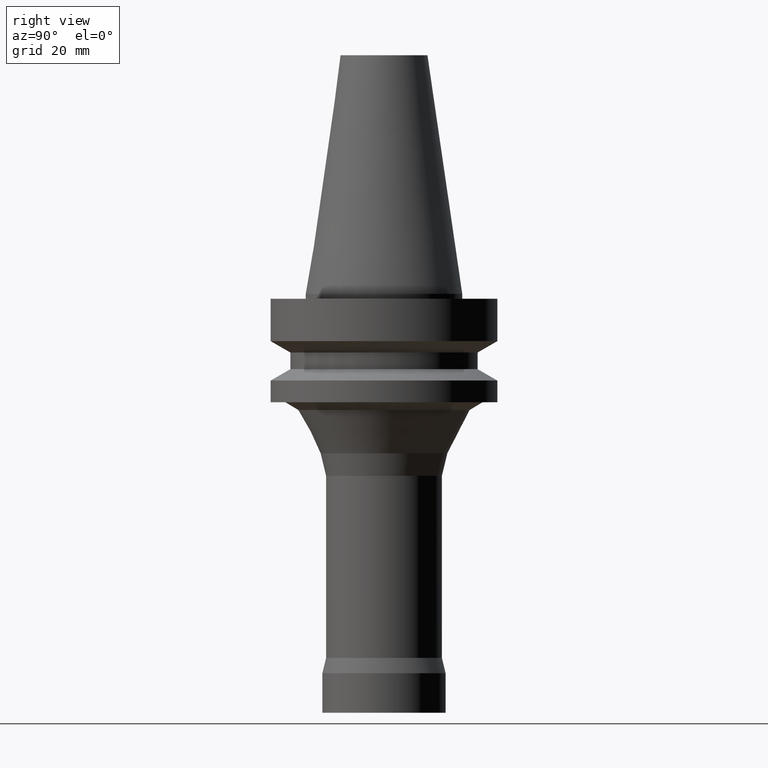
[diagram: clean part render]
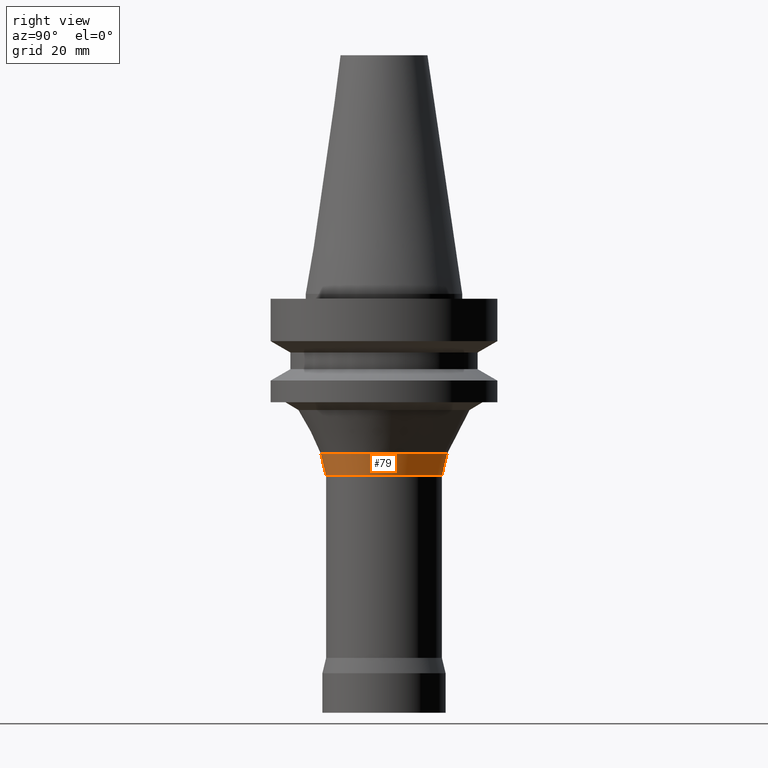
[diagram: same view with one face highlighted and labeled with its STEP entity id]
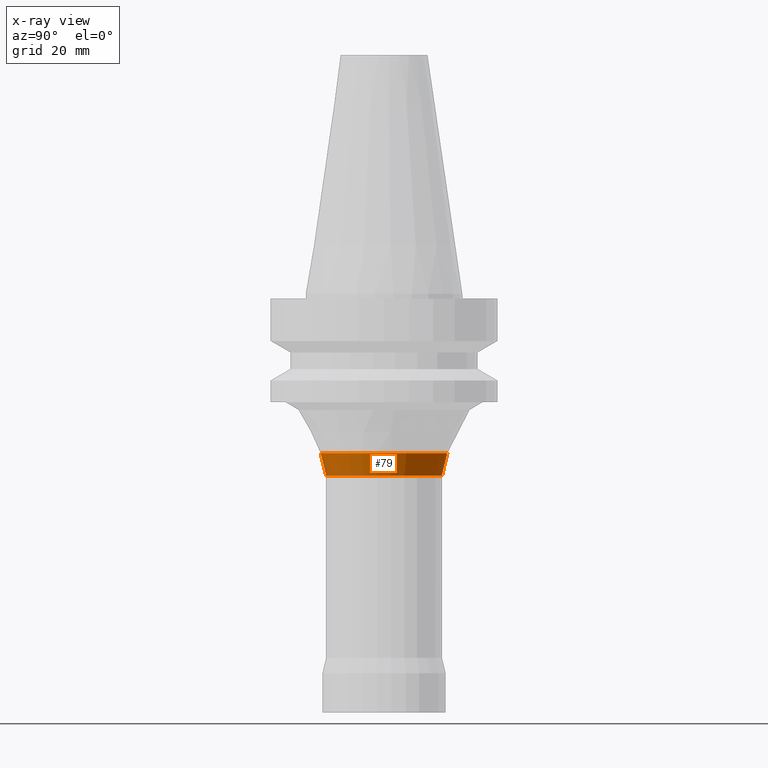
[diagram: x-ray of the same camera — body ghosted, the highlighted face saturated]
A machine part, right view. The second image highlights one B-rep face of the part: STEP entity #79.
The next image is the same camera in x-ray: the body ghosted, the highlighted face saturated — about 0% of this face is hidden behind the body in this view.
In plain terms, the highlighted conical surface has half-angle 13.59 deg.
Its self-contained STEP definition (entity closure, byte-faithful):
#79=ADVANCED_FACE('',(#104,#105),#106,.T.);
#104=FACE_BOUND('',#153,.T.);
#105=FACE_BOUND('',#154,.T.);
#106=CONICAL_SURFACE('',#155,12.30212292,0.237190749227247);
#153=EDGE_LOOP('',(#210));
#154=EDGE_LOOP('',(#211));
#155=AXIS2_PLACEMENT_3D('',#212,#213,#214);
#210=ORIENTED_EDGE('',*,*,#275,.F.);
#211=ORIENTED_EDGE('',*,*,#278,.T.);
#212=CARTESIAN_POINT('',(2.12068846313392E-015,4.24137692626783E-015,-34.633470885));
#213=DIRECTION('',(-6.12323399573677E-017,-1.22464679914735E-016,1.0));
#214=DIRECTION('',(-1.23259516440783E-032,1.0,1.22464679914735E-016));
#275=EDGE_CURVE('',#292,#292,#293,.T.);
#278=EDGE_CURVE('',#298,#298,#299,.T.);
#292=VERTEX_POINT('',#324);
#293=CIRCLE('',#325,11.75);
#298=VERTEX_POINT('',#330);
#299=CIRCLE('',#331,12.85424584);
#324=CARTESIAN_POINT('',(2.26053955499567E-015,11.75,-36.91741254));
#325=AXIS2_PLACEMENT_3D('',#357,#358,#359);
#330=CARTESIAN_POINT('',(1.98083737127216E-015,12.85424584,-32.34952923));
#331=AXIS2_PLACEMENT_3D('',#366,#367,#368);
#357=CARTESIAN_POINT('',(2.26053955499567E-015,4.52107910999134E-015,-36.91741254));
#358=DIRECTION('',(6.12323399573677E-017,1.22464679914735E-016,-1.0));
#359=DIRECTION('',(-1.23259516440783E-032,1.0,1.22464679914735E-016));
#366=CARTESIAN_POINT('',(1.98083737127216E-015,3.96167474254432E-015,-32.34952923));
#367=DIRECTION('',(6.12323399573677E-017,1.22464679914735E-016,-1.0));
#368=DIRECTION('',(-1.23259516440783E-032,1.0,1.22464679914735E-016));